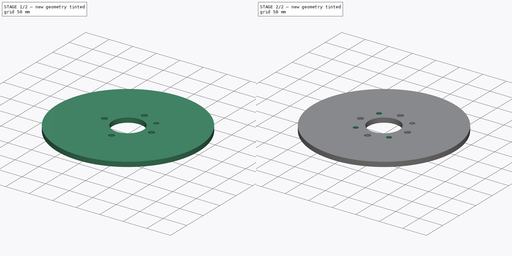
[diagram: build sequence overview — one tinted view per stage of 2, left to right]
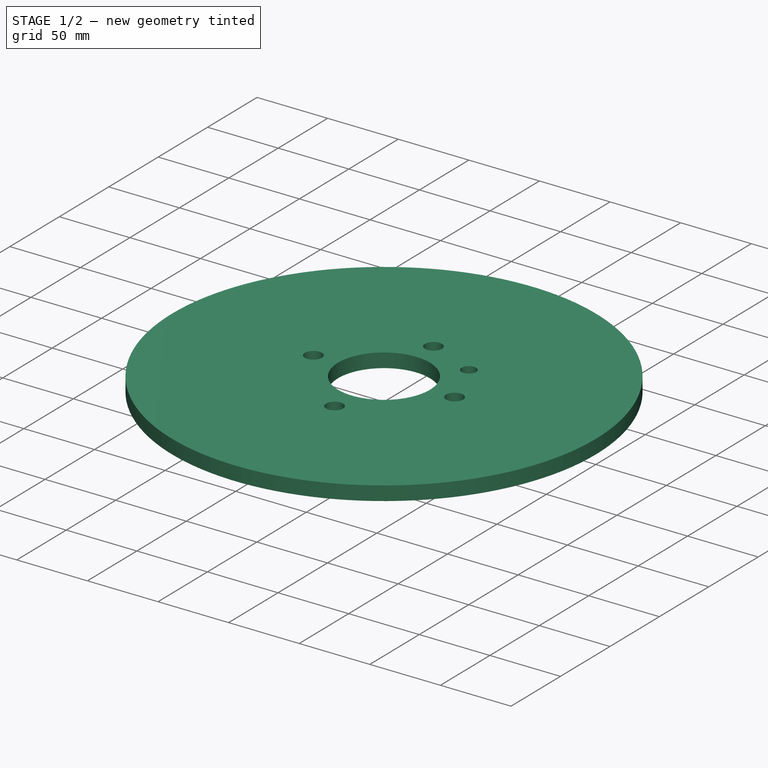
[diagram: stage 1 of 2 — iso view after this stage's code; geometry added in this stage tinted green]
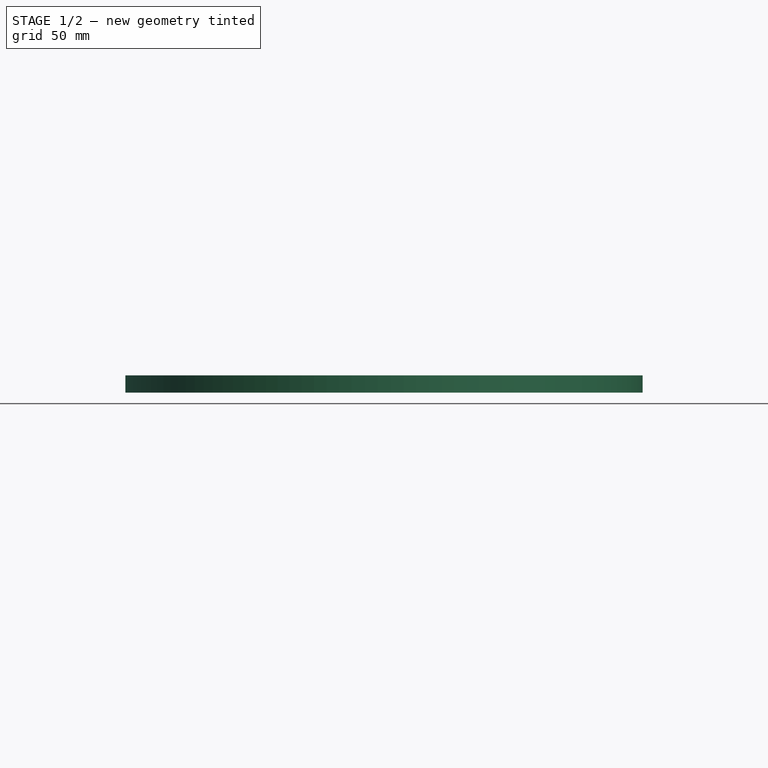
[diagram: stage 1 of 2 — front view after this stage's code; geometry added in this stage tinted green]
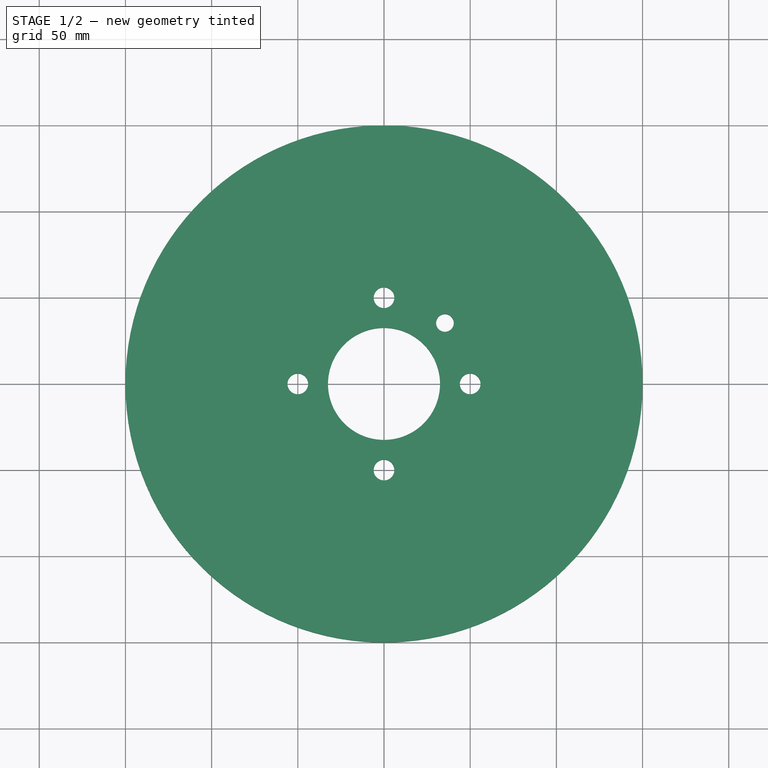
[diagram: stage 1 of 2 — top view after this stage's code; geometry added in this stage tinted green]
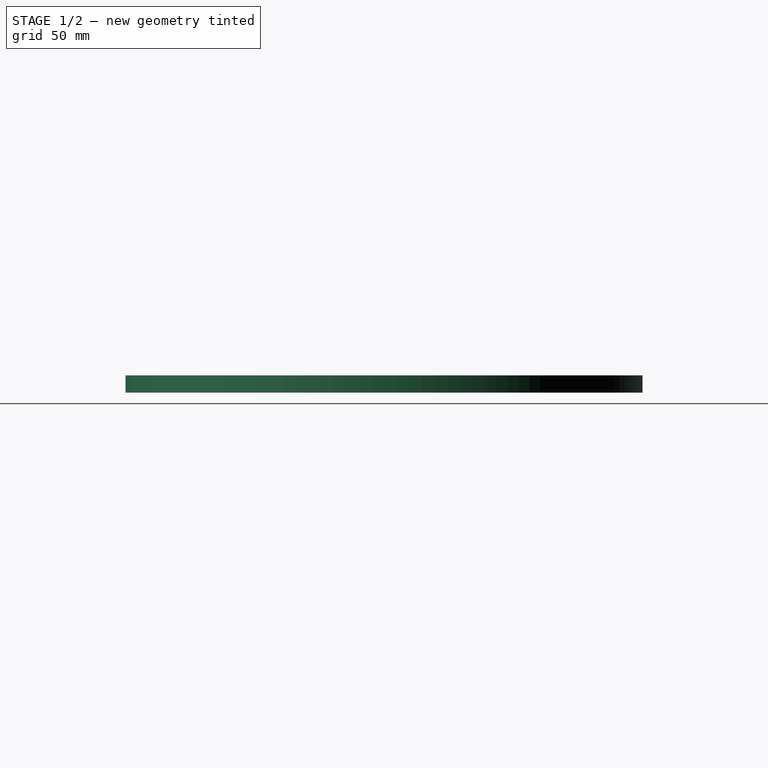
[diagram: stage 1 of 2 — right view after this stage's code; geometry added in this stage tinted green]
FCSTD DOCUMENT  (FreeCAD 1.0R39109 (Git))
Label: Rotor_Disk_Front
License: All rights reserved
LicenseURL: http://en.wikipedia.org/wiki/All_rights_reserved
objects: Spreadsheet::Sheet×1, Sketcher::SketchObject×1, PartDesign::SubShapeBinder×1, PartDesign::FeatureBase×1, PartDesign::Pocket×1, PartDesign::PolarPattern×1, PartDesign::Body×1, App::Link×1
note: 11 computed .brp shape members not serialized (recipe doc carries the construction recipe); baked Part::Feature solids carry a one-line shape summary decoded from their .brp
EXTERNAL_REF file=../../Master_of_Puppets.FCStd obj=Alternator
EXTERNAL_REF file=../../Master_of_Puppets.FCStd obj=Hub
EXTERNAL_REF file=../../Master_of_Puppets.FCStd obj=Spreadsheet
EXTERNAL_REF file=Rotor_Disk_Back.FCStd obj=Pocket001Body

FEATURE [Spreadsheet::Sheet] Spreadsheet
  cells = A1='Inputs; A2='CalculatedWindTurbineShape; B2(CalculatedWindTurbineShape)==Master_of_Puppets#Spreadsheet.CalculatedWindTurbineShape; A3='HubPitchCircleRadius; B3(HubPitchCircleRadius)==Master_of_Puppets#Hub.HubPitchCircleRadius; A4='RotorDiskThickness; B4(RotorDiskThickness)==Master_of_Puppets#Spreadsheet.RotorDiskThickness; A5='HubHolesRadius; B5(HubHolesRadius)==Master_of_Puppets#Hub.HubHolesRadius; A6='NumberOfJackingHoles; B6(NumberOfJackingHoles)==Master_of_Puppets#Alternator.NumberOfJackingHoles; A7='JackingHoleDiameter; B7(JackingHoleDiameter)==Master_of_Puppets#Alternator.JackingHoleDiameter; A8='IslandRadius; B8(IslandRadius)==Master_of_Puppets#Alternator.IslandRadius; A9='Calculated; A10='JackingHoleRadius; B10(JackingHoleRadius)==JackingHoleDiameter / 2; A11='DistanceOfHolesFromCenter; A12='TShapeDistanceOfHolesFromCenter; B12(TShapeDistanceOfHolesFromCenter)==HubPitchCircleRadius; A13='HShapeDistanceOfHolesFromCenter; B13(HShapeDistanceOfHolesFromCenter)==(IslandRadius - HubPitchCircleRadius + HubHolesRadius) / 2 + HubPitchCircleRadius; A14='DistanceOfHolesFromCenter; B14(DistanceOfHolesFromCenter)==CalculatedWindTurbineShape == <<T>> ? TShapeDistanceOfHolesFromCenter : HShapeDistanceOfHolesFromCenter; A15='HoleAngle; A16='TShapeHoleAngle; B16(TShapeHoleAngle)==45 deg; A17='HShapeHoleAngle; B17(HShapeHoleAngle)==90 deg; A18='HoleAngle; B18(HoleAngle)==CalculatedWindTurbineShape == <<T>> ? TShapeHoleAngle : HShapeHoleAngle
FEATURE [Sketcher::SketchObject] Sketch
  ArcFitTolerance = 0
  AttachmentOffset = pos=(0,0,10) rot=(0,0,1;0rad)
  AttachmentSupport = -> [XY_Plane]
  FullyConstrained = true
  MakeInternals = false
  MapMode = 5
  Placement = pos=(0,0,10) rot=(0,0,1;0rad)
  expr: .AttachmentOffset.Base.z = Spreadsheet.RotorDiskThickness
  expr: Constraints[0] = Spreadsheet.JackingHoleRadius
  expr: Constraints[3] = Spreadsheet.HoleAngle
  expr: Constraints[4] = Spreadsheet.DistanceOfHolesFromCenter
  sketch-geometry (2):
    g0: Circle CenterX=35.3553 CenterY=35.3553 CenterZ=0 NormalX=0 NormalY=0 NormalZ=1 AngleXU=0 Radius=5.125
    g1: LineSegment [constr] StartX=35.3553 StartY=35.3553 StartZ=0 EndX=-6e-16 EndY=1e-15 EndZ=0
  constraints (5):
    c: Radius(g0) = 5.125
    c: Coincident(g1,g0)
    c: Coincident(g1,g-1)
    c: Angle(g-1,g1) = 0.785398
    c: Distance(g-1,g0) = 50
FEATURE [PartDesign::SubShapeBinder] Binder
  BindCopyOnChange = 0
  BindMode = 0
  ClaimChildren = false
  Context = -> Body [Binder.]
  Fuse = false
  MakeFace = true
  OffsetFill = false
  OffsetIntersection = false
  OffsetJoinType = 0
  OffsetOpenResult = false
  PartialLoad = false
  Refine = true
  Relative = true
  Support = -> [Link]
  _Version = 2
FEATURE [PartDesign::FeatureBase] BaseFeature
  BaseFeature = -> Binder
  Suppressed = false
FEATURE [PartDesign::Pocket] Pocket
  BaseFeature = -> BaseFeature
  Direction = (0,0,-1)
  Length = 5
  Length2 = 100
  Profile = -> Sketch
  Suppressed = false
  Type = 1
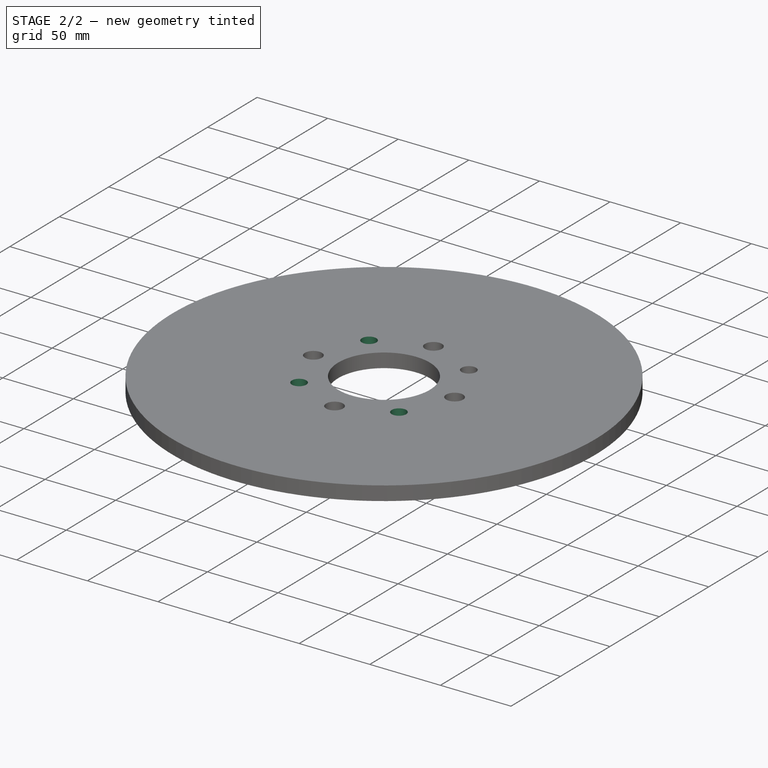
[diagram: stage 2 of 2 — iso view after this stage's code; geometry added in this stage tinted green]
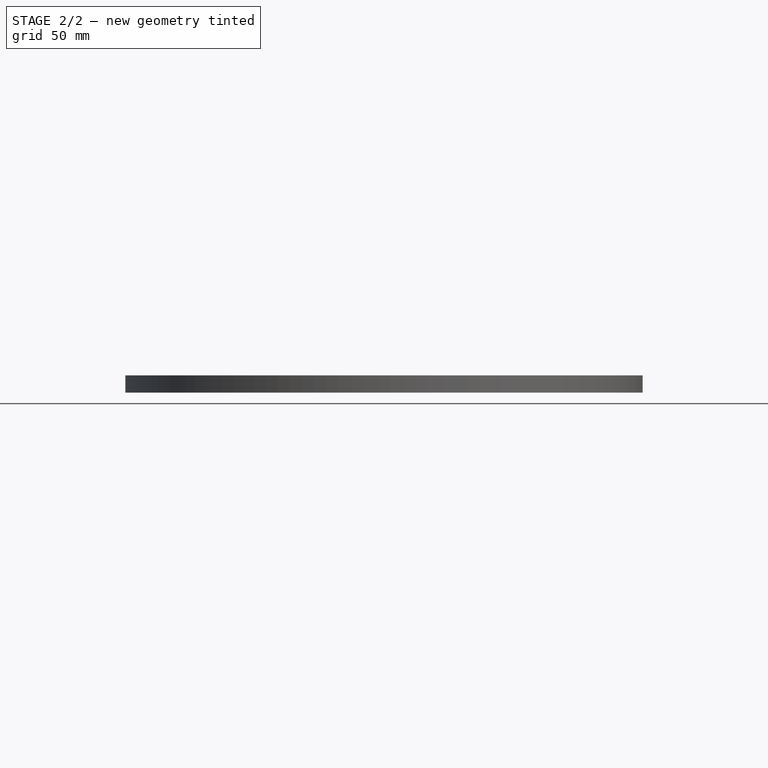
[diagram: stage 2 of 2 — front view after this stage's code; geometry added in this stage tinted green]
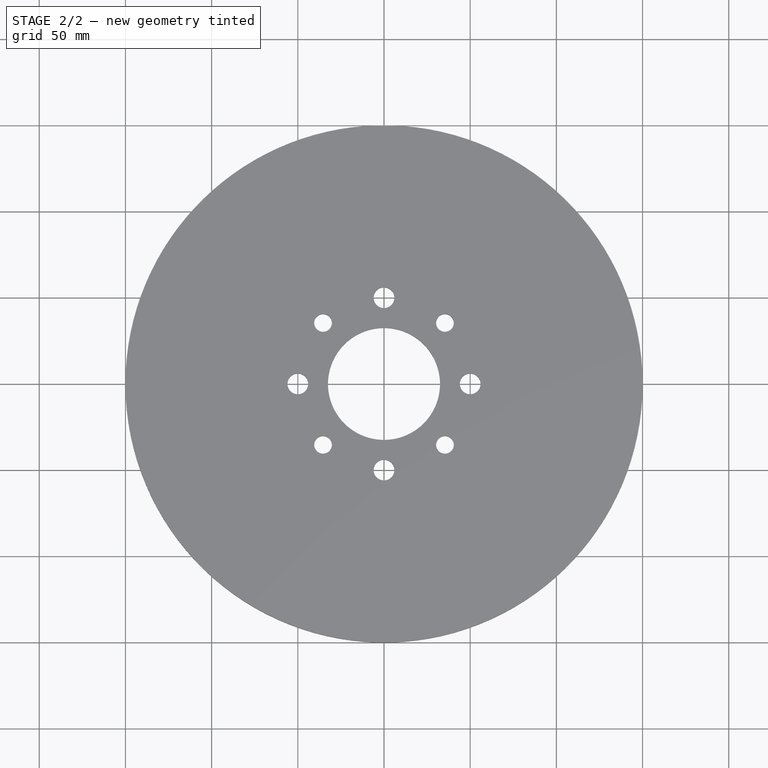
[diagram: stage 2 of 2 — top view after this stage's code; geometry added in this stage tinted green]
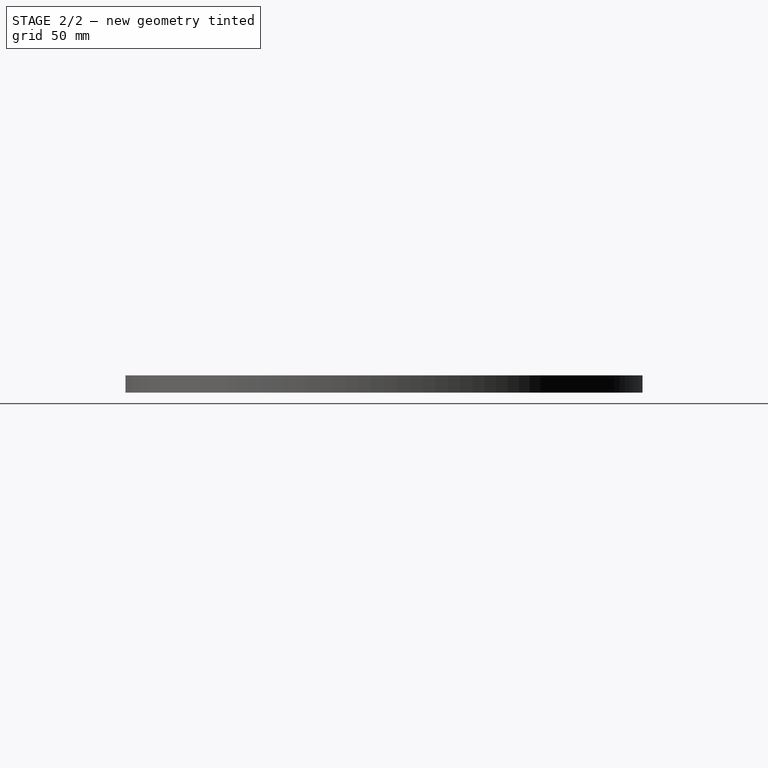
[diagram: stage 2 of 2 — right view after this stage's code; geometry added in this stage tinted green]
FEATURE [PartDesign::PolarPattern] PolarPattern
  Angle = 360
  Axis = -> Sketch [N_Axis]
  BaseFeature = -> Pocket
  Mode = 0
  Occurrences = 4
  Offset = 120
  Originals = -> [Pocket]
  Suppressed = false
  TransformMode = 0
  expr: Occurrences = Spreadsheet.NumberOfJackingHoles
FEATURE [PartDesign::Body] Body  label="Rotor_Disk_Front"
  AllowCompound = false
  BaseFeature = -> Binder
  Group = -> [BaseFeature,Binder,Sketch,Pocket,PolarPattern]
  Openafpm_Flat = true
  Origin = -> Origin
  Tip = -> PolarPattern
FEATURE [App::Link] Link  label="Rotor_Disk_Back"
  LinkedObject = -> <external Rotor_Disk_Back.FCStd>#Pocket001Body
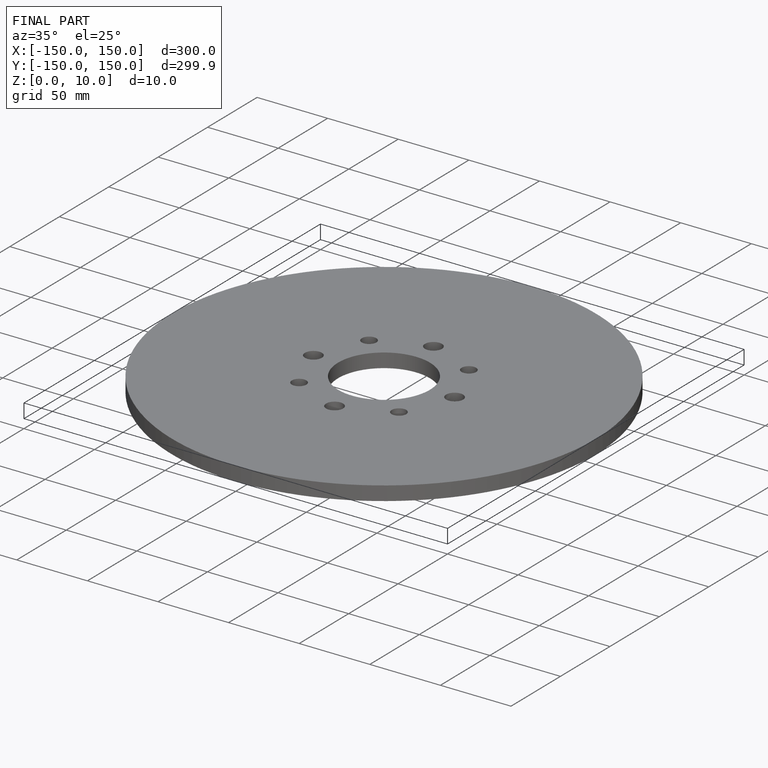
[diagram: finished part — iso view with bounding-box wireframe]
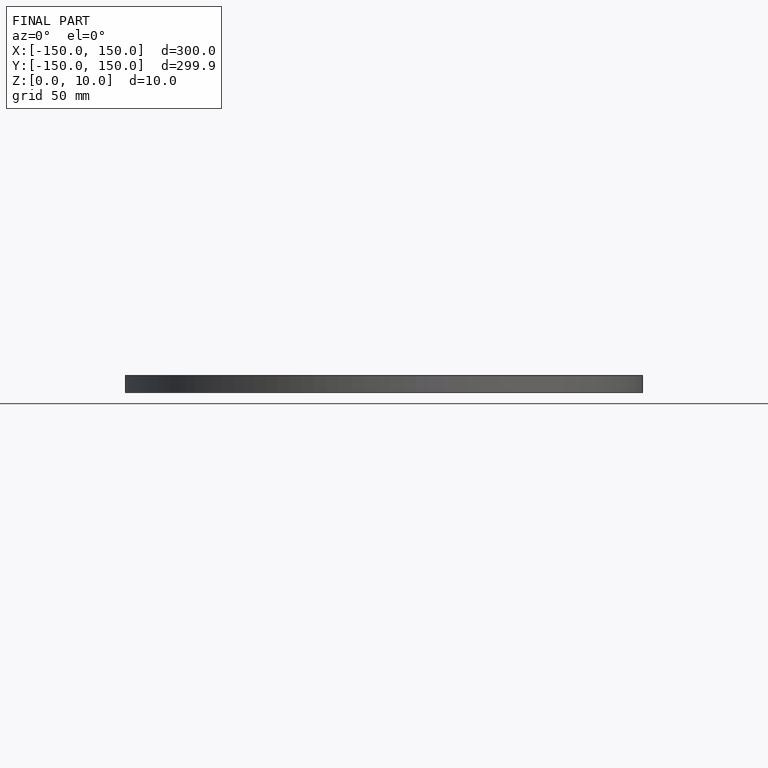
[diagram: finished part — front view with bounding-box wireframe]
